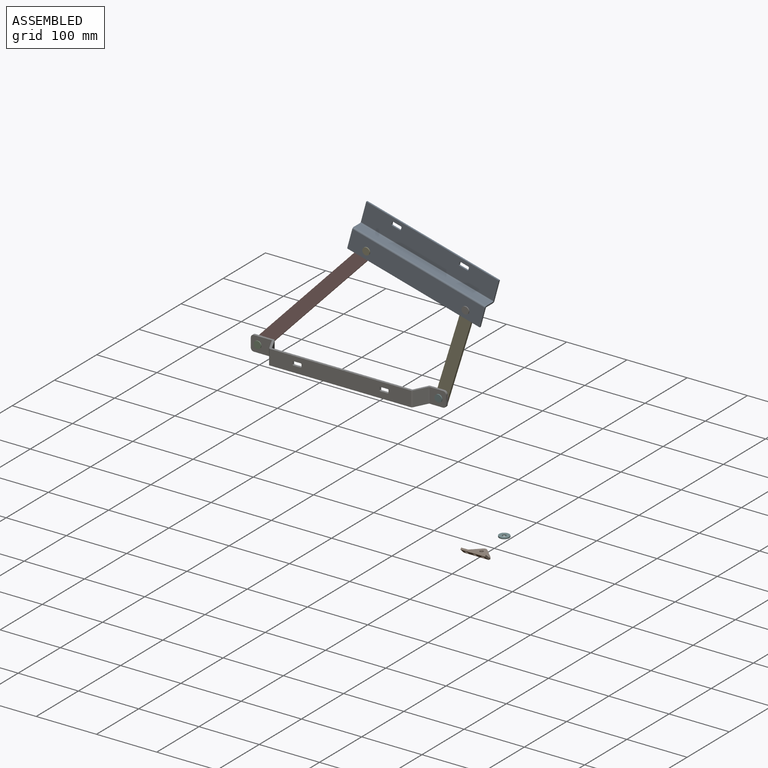
[diagram: assembled view]
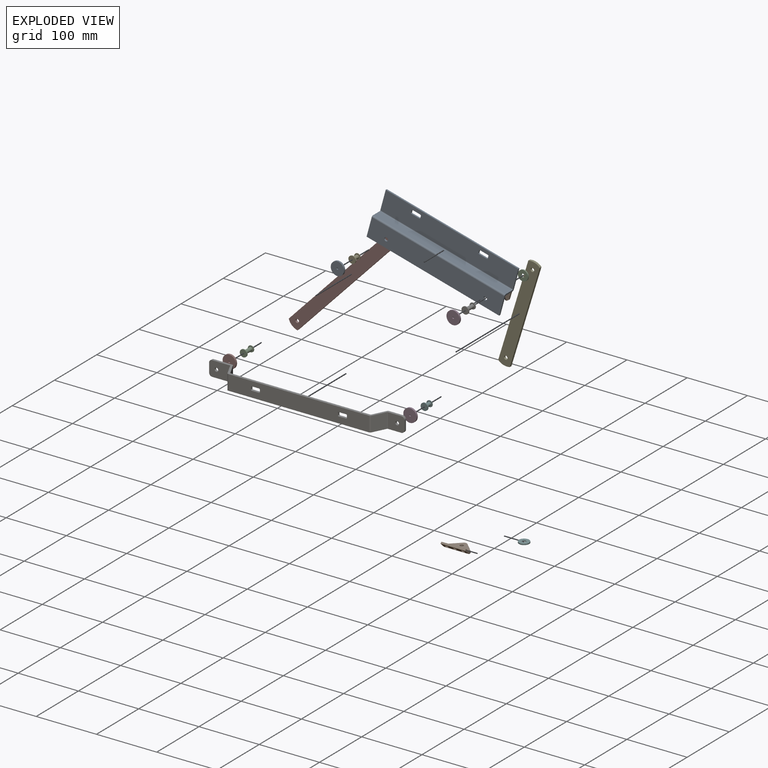
[diagram: exploded view]
GUIDED TOUR — MATED ASSEMBLY (Onshape document 58fe6e8e3dcbbf100b269004, AutoMate assembly 58fe6e8e3dcbbf100b269004_868ed93a223b8f6f9c2ad554_d176c854587e0610e55d47ec_default)

This assembly has 16 components, labeled P0..P15 below (a component is one placed occurrence of a part; the same part can appear more than once), held together by 14 mates. A mate is a constraint between two components; its type names the relative motion it leaves free:
  REVOLUTE — leaves rotation about the listed axis free (a hinge).
Axis/direction vectors are unit vectors and 'through' points are millimeter coordinates, both in the assembly's world frame.

MATES
  1. REVOLUTE "Revolute 3": P12 <-> P5, axis (0.000, -1.000, 0.000) through (389.94, 91.94, -59.82) mm
  2. REVOLUTE "Revolute 7": P10 <-> P6, axis (0.000, -1.000, 0.000) through (434.06, 95.04, 83.54) mm
  3. REVOLUTE "Revolute 2": P11 <-> P5, axis (0.000, -1.000, 0.000) through (389.94, 89.89, -59.82) mm
  4. REVOLUTE "Revolute 14": P7 <-> P15, axis (0.000, -1.000, 0.000) through (89.94, 90.04, -59.82) mm
  5. REVOLUTE "Revolute 8": P9 <-> P6, axis (0.000, 1.000, 0.000) through (434.06, 96.24, 83.54) mm
  6. REVOLUTE "Revolute 6": P3 <-> P6, axis (0.000, -1.000, 0.000) through (434.06, 88.14, 83.54) mm
  7. REVOLUTE "Revolute 12": P14 <-> P2, axis (0.000, 1.000, 0.000) through (89.94, 84.89, -59.82) mm
  8. REVOLUTE "Revolute 1": P14 <-> P5, axis (0.000, 1.000, 0.000) through (389.94, 84.89, -59.82) mm
  9. REVOLUTE "Revolute 4": P12 <-> P6, axis (0.000, 1.000, 0.000) through (434.06, 93.94, 83.54) mm
  10. REVOLUTE "Revolute 13": P15 <-> P2, axis (0.000, -1.000, 0.000) through (89.94, 88.54, -59.82) mm
  11. REVOLUTE "Revolute 9": P0 <-> P4, axis (0.000, -1.000, 0.000) through (269.51, 85.14, 128.20) mm
  12. REVOLUTE "Revolute 10": P8 <-> P4, axis (0.000, -1.000, 0.000) through (269.51, 88.34, 128.20) mm
  13. REVOLUTE "Revolute 11": P7 <-> P4, axis (0.000, -1.000, 0.000) through (269.51, 92.04, 128.20) mm
  14. REVOLUTE "Revolute 5": P0 <-> P6, axis (0.000, -1.000, 0.000) through (434.06, 85.14, 83.54) mm

ASSEMBLY ORDER
  1. P3 — the base component [order verified]
  2. P0 [order verified]
  3. P12 [order verified]
  4. P6 [order verified]
  5. P10 [order verified]
  6. P9 [order verified]
  7. P8 [order verified]
  8. P4 [order verified]
  9. P11 [order verified]
  10. P15 [order verified]
  11. P14 [order verified]
  12. P5 [order verified]
  13. P2 [order verified]
  14. P7 [order verified]
  15. P13 [order verified]
  16. P1 [order verified]
Order-tag legend:
  [order verified] — this step's position reverses a verified removal order: the component was checked to insert without passing through the ones already placed.

Of the 16 components, 12 carry the full construction recipe — the FeatureScript program that regenerates the part's solid from scratch; the rest are supplied as boundary geometry only.
Because this assembly has more than 12 components, the tour below covers the 12 most significant ones individually (every recipe-attached component first, then the largest by part volume), in assembly order; the remaining 4 are summarized together in a grouped section at the end.
Each toured component is shown spotlighted twice — in the assembled view, then in the exploded view, where a leader line traces a displaced component back to its assembled socket (saturated green if recipe-attached, orange if geometry-only; every other component desaturated gray) — followed by its recipe or geometry summary and the mates that hold it.
NOTE — document 2 of 2 of this assembly tour. The two overview renders and the header above are repeated from document 1; the component sections below continue where the previous document stopped.
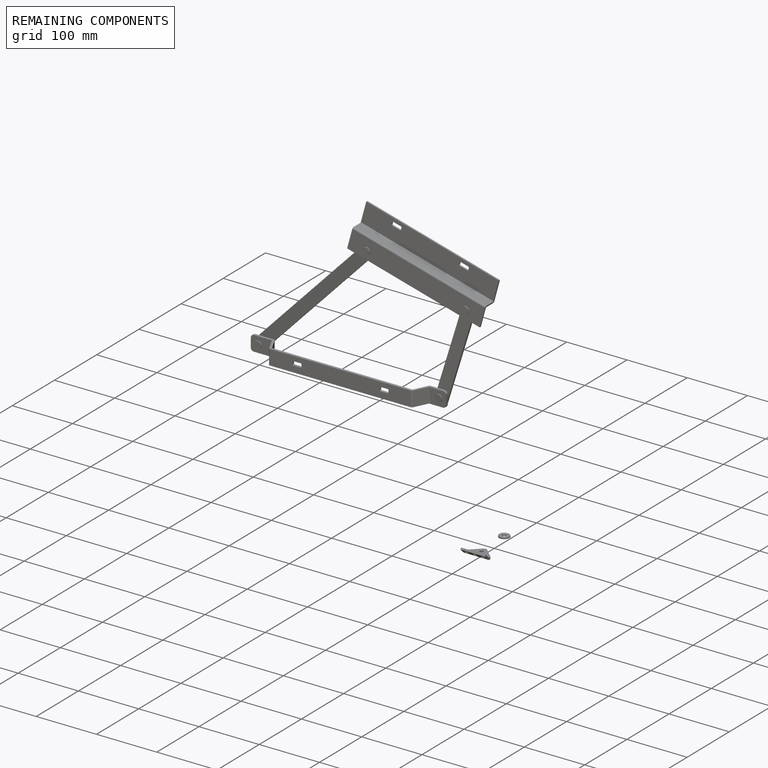
[diagram: remaining components — assembled]
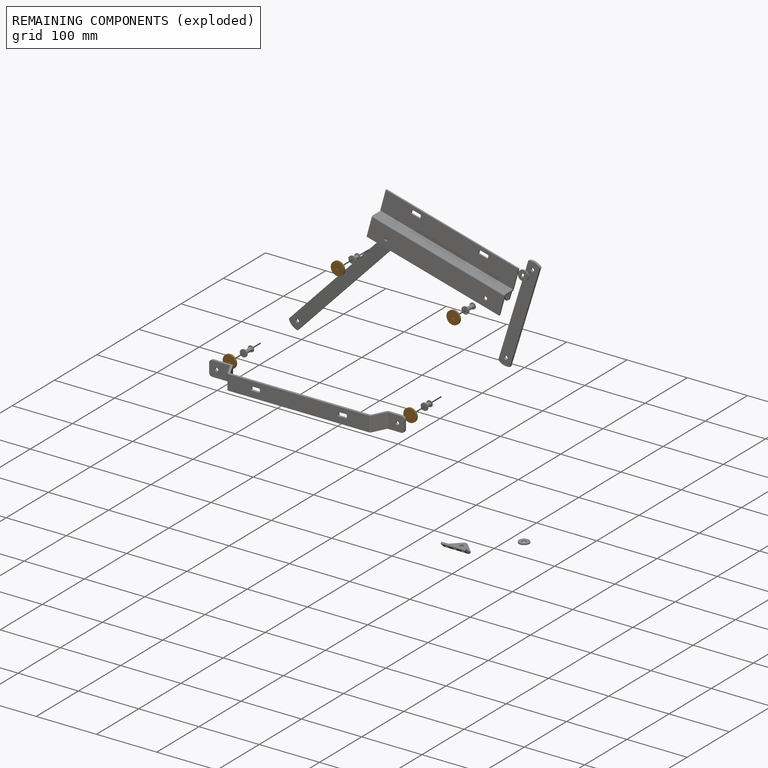
[diagram: remaining components — exploded]
REMAINING COMPONENTS (grouped) — the 4 components below fall outside the per-component tour by the significance rule stated above; both spotlight views highlight the whole group.
  P3: bounding box 22.0 x 22.0 x 3.0 mm, volume 1119 mm^3. Held by: REVOLUTE mate "Revolute 6" to P6.
  P8: bounding box 22.0 x 22.0 x 3.0 mm, volume 1119 mm^3. Held by: REVOLUTE mate "Revolute 10" to P4.
  P11: bounding box 22.0 x 22.0 x 3.0 mm, volume 1119 mm^3. Held by: REVOLUTE mate "Revolute 2" to P5.
  P15: bounding box 22.0 x 22.0 x 3.0 mm, volume 1119 mm^3. Held by: REVOLUTE mate "Revolute 14" to P7; REVOLUTE mate "Revolute 13" to P2.
PROVENANCE & LICENSES
Assembly (occurrences, transforms, mates, per-part STEP geometry): AutoMate dataset, Zenodo record 7776208, CC0.
Construction recipes: CADFS (HuggingFace VladPyatov/CADFS, CC-BY-4.0, layered over the ABC dataset), FeatureScript reconstruction programs keyed by ABC model id.
Join: ABC meta listings map ABC model id -> Onshape documentId; within a shared document, parts are matched by geometric signature (bounding-box dims + volume at 0.1% relative tolerance, exact B-rep face/solid counts).
Verification: 12 of this assembly's 16 components carry a recipe attachment, and every attachment is mesh-verified: the CADFS STEP and the AutoMate member STEP were compared as meshes in their shared local frame (symmetric sampled-point-to-mesh distance); worst across the 12 attachments: below the mesh-comparison resolution (tessellation chordal tolerance ~0.489 mm) on a 326 mm part.
Renders: orthographic iso camera (az 35 / el 25); the floor grid conveys scale (grid pitch printed in each image; no ruler). In the exploded view each component is displaced by its stored offset vector: the offsets alone carry the explosion direction (mate normal/axis signs are not orientation cues and do not encode it), and separation distances are assigned per mate-chain, not proportionally to assembly-order depth.
